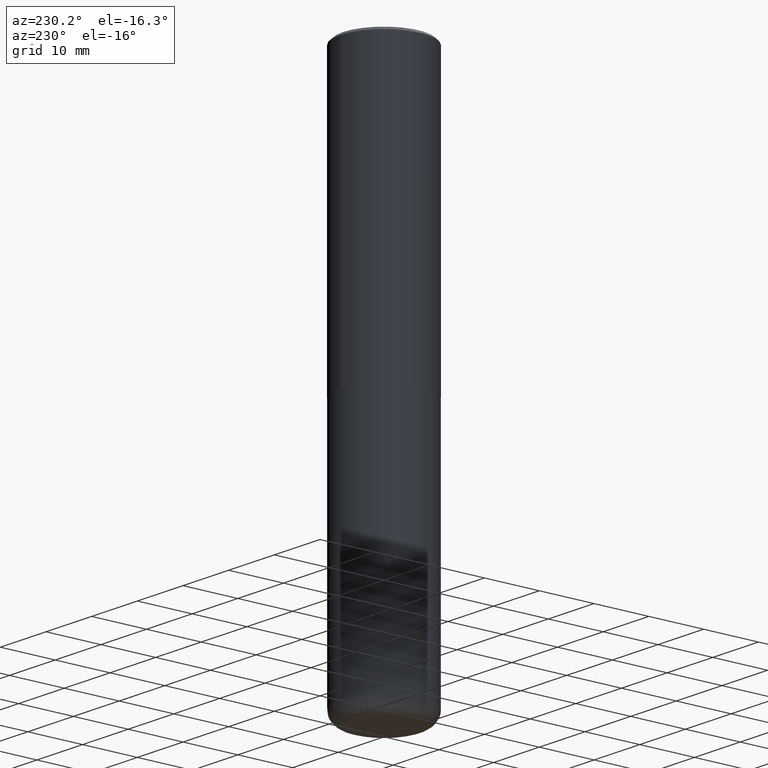
[diagram: clean part render]
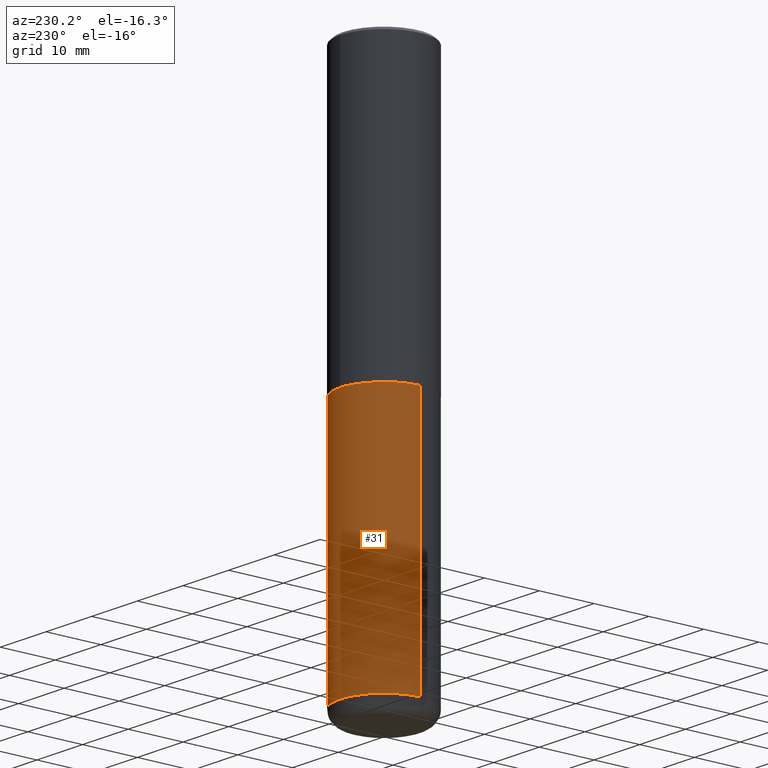
[diagram: same view with one face highlighted and labeled with its STEP entity id]
A machine part, auxiliary view. The second image highlights one B-rep face of the part: STEP entity #31.
In plain terms, the highlighted cylindrical surface (partial cylindrical patch) has radius 7.9997 mm, axis along (-0, 0, 1).
Its self-contained STEP definition (entity closure, byte-faithful):
#2 = EDGE_LOOP ( 'NONE', ( #238, #58, #114, #188 ) ) ;
#19 = DIRECTION ( 'NONE',  ( 1.000000000000000000, -6.982962677686266711E-15, 4.876176775795936353E-29 ) ) ;
#20 = DIRECTION ( 'NONE',  ( -2.445468806185136877E-29, 3.491481338843145188E-15, 1.000000000000000000 ) ) ;
#28 = AXIS2_PLACEMENT_3D ( 'NONE', #139, #172, #390 ) ;
#31 = ADVANCED_FACE ( 'NONE', ( #183 ), #308, .T. ) ;
#40 = DIRECTION ( 'NONE',  ( -2.445468806185136877E-29, 3.491481338843145188E-15, 1.000000000000000000 ) ) ;
#41 = AXIS2_PLACEMENT_3D ( 'NONE', #125, #375, #19 ) ;
#50 = AXIS2_PLACEMENT_3D ( 'NONE', #145, #270, #105 ) ;
#58 = ORIENTED_EDGE ( 'NONE', *, *, #281, .T. ) ;
#84 = VERTEX_POINT ( 'NONE', #134 ) ;
#88 = VECTOR ( 'NONE', #40, 39.37007874015748143 ) ;
#105 = DIRECTION ( 'NONE',  ( 1.000000000000000000, -6.982962677686266711E-15, 0.000000000000000000 ) ) ;
#114 = ORIENTED_EDGE ( 'NONE', *, *, #286, .F. ) ;
#115 = VERTEX_POINT ( 'NONE', #241 ) ;
#125 = CARTESIAN_POINT ( 'NONE',  ( 0.000000000000000000, 0.000000000000000000, 0.000000000000000000 ) ) ;
#129 = CARTESIAN_POINT ( 'NONE',  ( -0.3149500000000000077, 2.237854346276435590E-15, -1.549218606675782676E-29 ) ) ;
#134 = CARTESIAN_POINT ( 'NONE',  ( -0.3149500000000000077, -8.037226085805059139E-15, -2.047200000000000575 ) ) ;
#139 = CARTESIAN_POINT ( 'NONE',  ( 9.387176559422264284E-29, -1.340240026728329889E-14, -3.838600000000000012 ) ) ;
#144 = EDGE_CURVE ( 'NONE', #115, #277, #394, .T. ) ;
#145 = CARTESIAN_POINT ( 'NONE',  ( 5.006363740022212801E-29, -7.147760596879689780E-15, -2.047200000000000575 ) ) ;
#172 = DIRECTION ( 'NONE',  ( -2.445468806185136597E-29, 3.491481338843145583E-15, 1.000000000000000000 ) ) ;
#183 = FACE_OUTER_BOUND ( 'NONE', #2, .T. ) ;
#188 = ORIENTED_EDGE ( 'NONE', *, *, #391, .F. ) ;
#208 = LINE ( 'NONE', #344, #321 ) ;
#233 = LINE ( 'NONE', #129, #88 ) ;
#238 = ORIENTED_EDGE ( 'NONE', *, *, #144, .T. ) ;
#241 = CARTESIAN_POINT ( 'NONE',  ( 0.3149499999999999522, -1.560168436262058718E-14, -3.838600000000000012 ) ) ;
#270 = DIRECTION ( 'NONE',  ( -2.445468806185136597E-29, 3.491481338843145583E-15, 1.000000000000000000 ) ) ;
#277 = VERTEX_POINT ( 'NONE', #389 ) ;
#281 = EDGE_CURVE ( 'NONE', #277, #84, #233, .T. ) ;
#286 = EDGE_CURVE ( 'NONE', #385, #84, #326, .T. ) ;
#308 = CYLINDRICAL_SURFACE ( 'NONE', #41, 0.3149500000000000077 ) ;
#321 = VECTOR ( 'NONE', #20, 39.37007874015748143 ) ;
#326 = CIRCLE ( 'NONE', #50, 0.3149500000000000077 ) ;
#344 = CARTESIAN_POINT ( 'NONE',  ( 0.3149500000000000077, -2.199284095337289871E-15, 1.535751875536930130E-29 ) ) ;
#370 = CARTESIAN_POINT ( 'NONE',  ( 0.3149500000000000077, -9.347044692216979650E-15, -2.047200000000000575 ) ) ;
#375 = DIRECTION ( 'NONE',  ( -2.445468806185136597E-29, 3.491481338843145583E-15, 1.000000000000000000 ) ) ;
#385 = VERTEX_POINT ( 'NONE', #370 ) ;
#389 = CARTESIAN_POINT ( 'NONE',  ( -0.3149499999999999522, -1.116454592100686291E-14, -3.838600000000000012 ) ) ;
#390 = DIRECTION ( 'NONE',  ( 1.000000000000000000, -6.982962677686263555E-15, 0.000000000000000000 ) ) ;
#391 = EDGE_CURVE ( 'NONE', #115, #385, #208, .T. ) ;
#394 = CIRCLE ( 'NONE', #28, 0.3149500000000000077 ) ;